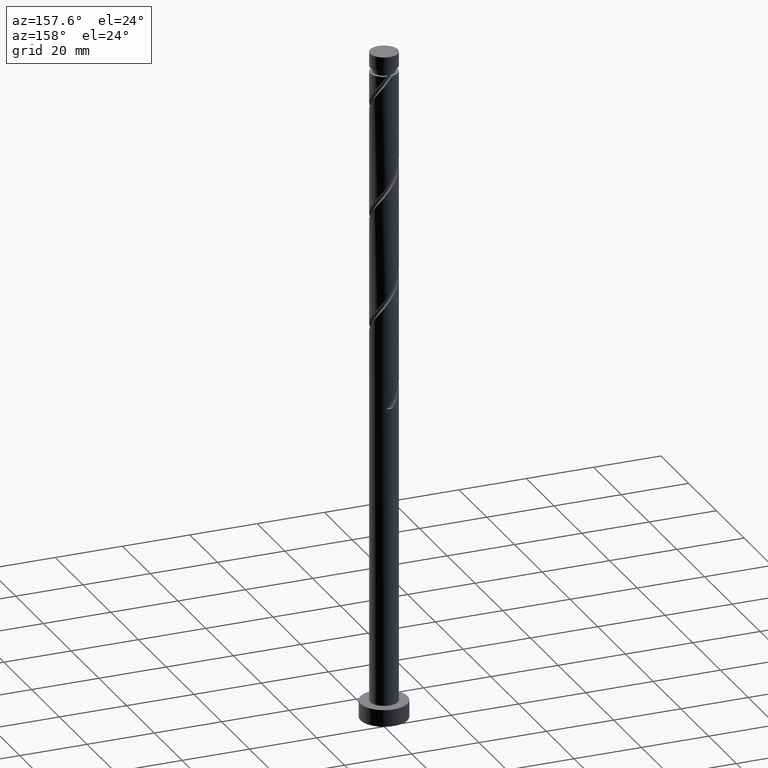
[diagram: clean part render]
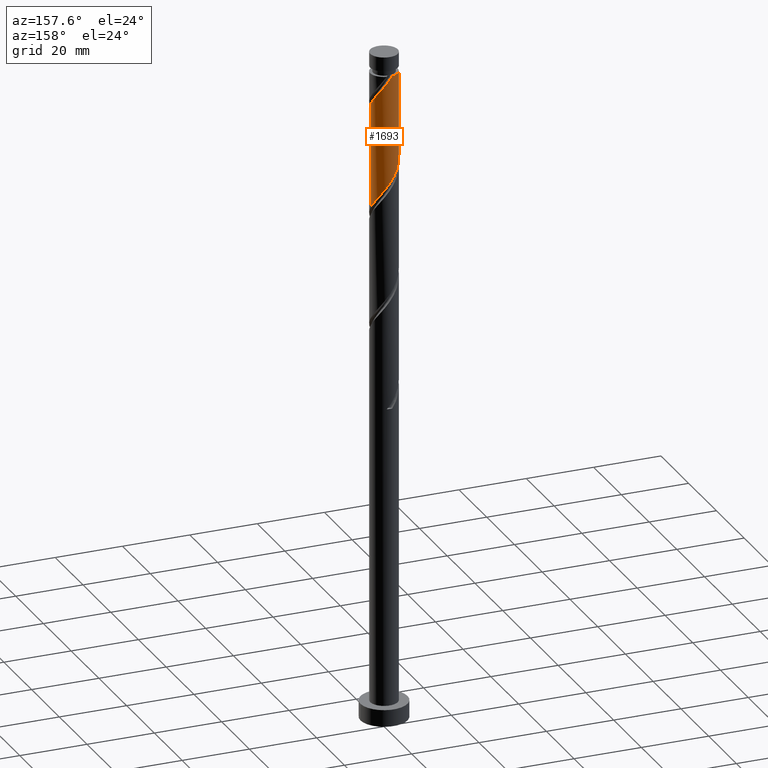
[diagram: same view with one face highlighted and labeled with its STEP entity id]
A machine part, auxiliary view. The second image highlights one B-rep face of the part: STEP entity #1693.
In plain terms, the highlighted cylindrical surface (edge-blend (fillet) strip) has radius 4.1 mm, axis along (-0, -0, -1).
Its self-contained STEP definition (entity closure, byte-faithful):
#44 = EDGE_CURVE ( 'NONE', #384, #704, #992, .T. ) ;
#62 = CARTESIAN_POINT ( 'NONE',  ( 3.071745223192166030, 2.715581205524178809, 188.6141216768783124 ) ) ;
#74 = CARTESIAN_POINT ( 'NONE',  ( 4.100000000000004974, -1.405655737700284907E-15, 184.7727772438905163 ) ) ;
#83 = CARTESIAN_POINT ( 'NONE',  ( -4.017999999999999794, 0.8158896984274290887, 169.1696772324338838 ) ) ;
#94 = CARTESIAN_POINT ( 'NONE',  ( -0.8158896984273877884, 4.017999999999993577, 194.1696772324338838 ) ) ;
#121 = EDGE_CURVE ( 'NONE', #309, #415, #239, .T. ) ;
#189 = CARTESIAN_POINT ( 'NONE',  ( 2.311178274938780142, 3.429258271300807515, 158.7530105657671982 ) ) ;
#199 = DIRECTION ( 'NONE',  ( -0.000000000000000000, -0.000000000000000000, -1.000000000000000000 ) ) ;
#203 = CARTESIAN_POINT ( 'NONE',  ( -3.071745223192159369, 2.715581205524178365, 166.3918994546561123 ) ) ;
#239 = LINE ( 'NONE', #773, #1341 ) ;
#247 = CARTESIAN_POINT ( 'NONE',  ( -4.099999999999988098, 0.000000000000000000, 194.1696772324338838 ) ) ;
#296 = CARTESIAN_POINT ( 'NONE',  ( 0.8158896984274299768, 4.017999999999999794, 160.8363438991005410 ) ) ;
#306 = CARTESIAN_POINT ( 'NONE',  ( -2.264233908349265523, 3.418076185265830347, 165.0030105657672266 ) ) ;
#309 = VERTEX_POINT ( 'NONE', #941 ) ;
#310 = CARTESIAN_POINT ( 'NONE',  ( 3.429258271300815508, 2.311178274938777921, 187.9196772324338554 ) ) ;
#325 = CARTESIAN_POINT ( 'NONE',  ( 0.2869099631212727042, 4.125413916553799076, 161.5307883435449696 ) ) ;
#343 = EDGE_CURVE ( 'NONE', #704, #415, #1495, .T. ) ;
#364 = VERTEX_POINT ( 'NONE', #499 ) ;
#384 = VERTEX_POINT ( 'NONE', #247 ) ;
#415 = VERTEX_POINT ( 'NONE', #1206 ) ;
#425 = DIRECTION ( 'NONE',  ( -1.000000000000000000, 0.000000000000000000, 0.000000000000000000 ) ) ;
#427 = CIRCLE ( 'NONE', #565, 4.099999999999988098 ) ;
#463 = CARTESIAN_POINT ( 'NONE',  ( 4.099999999999999645, 0.1260420017964625494, 153.7297409090054714 ) ) ;
#466 = CARTESIAN_POINT ( 'NONE',  ( 0.7906019473366270311, 4.059101608817101692, 192.0863438991005694 ) ) ;
#482 = CARTESIAN_POINT ( 'NONE',  ( -3.669922177373505345, 1.828023854336181975, 167.7807883435449980 ) ) ;
#492 = CARTESIAN_POINT ( 'NONE',  ( 4.018000000000005123, 0.8158896984274288666, 185.8363438991005694 ) ) ;
#499 = CARTESIAN_POINT ( 'NONE',  ( -0.8158896984273876773, 4.017999999999993577, 194.1696772324338838 ) ) ;
#528 = CARTESIAN_POINT ( 'NONE',  ( 0.000000000000000000, 0.000000000000000000, 200.0000000000000000 ) ) ;
#557 = DIRECTION ( 'NONE',  ( -0.000000000000000000, -0.000000000000000000, -1.000000000000000000 ) ) ;
#565 = AXIS2_PLACEMENT_3D ( 'NONE', #1079, #557, #425 ) ;
#592 = CARTESIAN_POINT ( 'NONE',  ( 4.092257762685446387, 0.2518459921076730557, 153.8918994546561407 ) ) ;
#601 = CARTESIAN_POINT ( 'NONE',  ( -1.814235641615019823, 3.716168234422080996, 164.3085661213227695 ) ) ;
#611 = CARTESIAN_POINT ( 'NONE',  ( -1.302418794475821207, 3.887634921619589345, 163.6141216768783124 ) ) ;
#634 = ORIENTED_EDGE ( 'NONE', *, *, #343, .F. ) ;
#645 = DIRECTION ( 'NONE',  ( -0.000000000000000000, -0.000000000000000000, -1.000000000000000000 ) ) ;
#648 = DIRECTION ( 'NONE',  ( -1.000000000000000000, 0.000000000000000000, 0.000000000000000000 ) ) ;
#704 = VERTEX_POINT ( 'NONE', #815 ) ;
#719 = CARTESIAN_POINT ( 'NONE',  ( -0.2518459921076751096, 4.092257762685445499, 162.2252327879894835 ) ) ;
#725 = CARTESIAN_POINT ( 'NONE',  ( 2.715581205524179698, 3.071745223192158036, 158.0585661213227695 ) ) ;
#730 = EDGE_CURVE ( 'NONE', #309, #364, #1543, .T. ) ;
#773 = CARTESIAN_POINT ( 'NONE',  ( 4.099999999999999645, 5.021051876504147385E-16, 200.0000000000000000 ) ) ;
#815 = CARTESIAN_POINT ( 'NONE',  ( -4.099999999999999645, -2.661773630964386005E-15, 170.2332438876439369 ) ) ;
#824 = ORIENTED_EDGE ( 'NONE', *, *, #44, .F. ) ;
#838 = CARTESIAN_POINT ( 'NONE',  ( 3.887634921619589790, 1.302418794475818542, 155.2807883435449696 ) ) ;
#847 = CARTESIAN_POINT ( 'NONE',  ( -0.7906019473366230343, 4.059101608817096363, 162.9196772324339122 ) ) ;
#851 = CARTESIAN_POINT ( 'NONE',  ( 2.714232175083516996, 3.119984136109579698, 189.3085661213227411 ) ) ;
#856 = CARTESIAN_POINT ( 'NONE',  ( -4.099999999999999645, -2.661773630964386005E-15, 170.2332438876439369 ) ) ;
#868 = CARTESIAN_POINT ( 'NONE',  ( 3.119984136109578809, 2.714232175083509890, 157.3641216768783408 ) ) ;
#904 = ORIENTED_EDGE ( 'NONE', *, *, #1418, .T. ) ;
#925 = CYLINDRICAL_SURFACE ( 'NONE', #1716, 4.099999999999999645 ) ;
#941 = CARTESIAN_POINT ( 'NONE',  ( 4.100000000000004974, -1.405655737700284907E-15, 184.7727772438905163 ) ) ;
#988 = CARTESIAN_POINT ( 'NONE',  ( 1.344869433733589359, 3.910586083446199179, 160.1418994546561407 ) ) ;
#992 = LINE ( 'NONE', #1415, #1697 ) ;
#993 = CARTESIAN_POINT ( 'NONE',  ( 1.302418794475825647, 3.887634921619593786, 191.3918994546561123 ) ) ;
#1005 = CARTESIAN_POINT ( 'NONE',  ( 0.2518459921076795505, 4.092257762685451716, 192.7807883435449696 ) ) ;
#1079 = CARTESIAN_POINT ( 'NONE',  ( 0.000000000000000000, 0.000000000000000000, 194.1696772324338838 ) ) ;
#1141 = CARTESIAN_POINT ( 'NONE',  ( 1.814235641615024486, 3.716168234422085437, 190.6974550102117121 ) ) ;
#1151 = CARTESIAN_POINT ( 'NONE',  ( 4.100000000000003197, 0.4120655042562861858, 185.3062036130798163 ) ) ;
#1157 = CARTESIAN_POINT ( 'NONE',  ( 4.059101608817097251, 0.7906019473366204808, 154.5863438991005694 ) ) ;
#1206 = CARTESIAN_POINT ( 'NONE',  ( 4.099999999999999645, 5.876837286342717736E-15, 153.5665772209772797 ) ) ;
#1256 = CARTESIAN_POINT ( 'NONE',  ( -3.910586083446200956, 1.344869433733586028, 168.4752327879894551 ) ) ;
#1269 = CARTESIAN_POINT ( 'NONE',  ( 3.669922177373511119, 1.828023854336181753, 187.2252327879894551 ) ) ;
#1276 = CARTESIAN_POINT ( 'NONE',  ( 3.418076185265830347, 2.264233908349264190, 156.6696772324339122 ) ) ;
#1301 = CARTESIAN_POINT ( 'NONE',  ( 3.910586083446207173, 1.344869433733585584, 186.5307883435450265 ) ) ;
#1341 = VECTOR ( 'NONE', #645, 1000.000000000000000 ) ;
#1349 = FACE_OUTER_BOUND ( 'NONE', #1514, .T. ) ;
#1382 = CARTESIAN_POINT ( 'NONE',  ( 4.099999999999999645, 5.876837286342717736E-15, 153.5665772209772797 ) ) ;
#1394 = CARTESIAN_POINT ( 'NONE',  ( 2.264233908349269520, 3.418076185265833900, 190.0030105657672266 ) ) ;
#1401 = CARTESIAN_POINT ( 'NONE',  ( 1.828023854336184639, 3.669922177373503569, 159.4474550102116837 ) ) ;
#1415 = CARTESIAN_POINT ( 'NONE',  ( -4.099999999999999645, 0.000000000000000000, 200.0000000000000000 ) ) ;
#1418 = EDGE_CURVE ( 'NONE', #384, #364, #427, .T. ) ;
#1495 =( BOUNDED_CURVE ( )  B_SPLINE_CURVE ( 2, ( #856, #1678, #83, #1256, #482, #1535, #203, #1527, #306, #601, #611, #847, #719, #325, #296, #988, #1401, #189, #725, #868, #1276, #1694, #838, #1157, #592, #463, #1382 ),
 .UNSPECIFIED., .F., .T. ) 
 B_SPLINE_CURVE_WITH_KNOTS ( ( 3, 2, 2, 2, 2, 2, 2, 2, 2, 2, 2, 2, 2, 3 ),
 ( 0.4295317669814462946, 0.4375000000000000000, 0.4479166666666666852, 0.4583333333333333148, 0.4687500000000000000, 0.4791666666666666852, 0.4895833333333333148, 0.5000000000000000000, 0.5104166666666666297, 0.5208333333333333703, 0.5312500000000000000, 0.5416666666666666297, 0.5520833333333333703, 0.5545317669814462391 ),
 .UNSPECIFIED. ) 
 CURVE ( )  GEOMETRIC_REPRESENTATION_ITEM ( )  RATIONAL_B_SPLINE_CURVE ( ( 0.9062941362546406143, 0.9031415850403449186, 0.9090909090909202739, 0.9013135103398387526, 0.9090909090909202739, 0.9013135103398387526, 0.9090909090909202739, 0.9013135103398387526, 0.9090909090909202739, 0.9013135103398387526, 0.9090909090909202739, 0.9013135103398387526, 0.9090909090909202739, 0.9013135103398387526, 0.9090909090909202739, 0.9013135103398387526, 0.9090909090909202739, 0.9013135103398387526, 0.9090909090909202739, 0.9013135103398387526, 0.9090909090909202739, 0.9013135103398387526, 0.9090909090909202739, 0.9013135103398387526, 0.9090909090909202739, 0.9072628343904141079, 0.9062941362546407253 ) ) 
 REPRESENTATION_ITEM ( '' )  );
#1514 = EDGE_LOOP ( 'NONE', ( #1610, #1582, #634, #824, #904 ) ) ;
#1527 = CARTESIAN_POINT ( 'NONE',  ( -2.714232175083510779, 3.119984136109578365, 165.6974550102117121 ) ) ;
#1535 = CARTESIAN_POINT ( 'NONE',  ( -3.429258271300809291, 2.311178274938777921, 167.0863438991005410 ) ) ;
#1543 =( BOUNDED_CURVE ( )  B_SPLINE_CURVE ( 2, ( #74, #1151, #492, #1301, #1269, #310, #62, #851, #1394, #1141, #993, #466, #1005, #1560, #94 ),
 .UNSPECIFIED., .F., .T. ) 
 B_SPLINE_CURVE_WITH_KNOTS ( ( 3, 2, 2, 2, 2, 2, 2, 3 ),
 ( 0.6795317669814464612, 0.6875000000000000000, 0.6979166666666666297, 0.7083333333333331483, 0.7187499999999998890, 0.7291666666666666297, 0.7395833333333330373, 0.7499999999999997780 ),
 .UNSPECIFIED. ) 
 CURVE ( )  GEOMETRIC_REPRESENTATION_ITEM ( )  RATIONAL_B_SPLINE_CURVE ( ( 0.9062941362546462765, 0.9031415850403508028, 0.9090909090909261581, 0.9013135103398444148, 0.9090909090909261581, 0.9013135103398444148, 0.9090909090909261581, 0.9013135103398444148, 0.9090909090909261581, 0.9013135103398444148, 0.9090909090909261581, 0.9013135103398444148, 0.9090909090909261581, 0.9013135103398446368, 0.9090909090909259360 ) ) 
 REPRESENTATION_ITEM ( '' )  );
#1560 = CARTESIAN_POINT ( 'NONE',  ( -0.2869099631212564949, 4.125413916553801741, 193.4752327879894835 ) ) ;
#1582 = ORIENTED_EDGE ( 'NONE', *, *, #121, .T. ) ;
#1605 = DIRECTION ( 'NONE',  ( -0.000000000000000000, -0.000000000000000000, -1.000000000000000000 ) ) ;
#1610 = ORIENTED_EDGE ( 'NONE', *, *, #730, .F. ) ;
#1678 = CARTESIAN_POINT ( 'NONE',  ( -4.100000000000001421, 0.4120655042562793580, 169.6998175184546938 ) ) ;
#1693 = ADVANCED_FACE ( 'NONE', ( #1349 ), #925, .T. ) ;
#1694 = CARTESIAN_POINT ( 'NONE',  ( 3.716168234422083660, 1.814235641615017380, 155.9752327879894551 ) ) ;
#1697 = VECTOR ( 'NONE', #199, 1000.000000000000000 ) ;
#1716 = AXIS2_PLACEMENT_3D ( 'NONE', #528, #1605, #648 ) ;